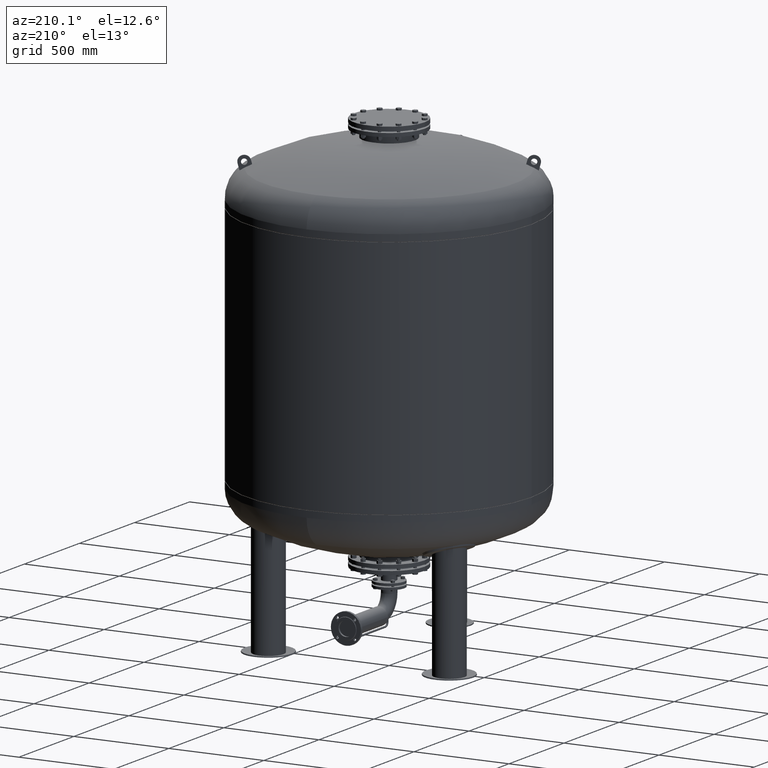
[diagram: clean part render]
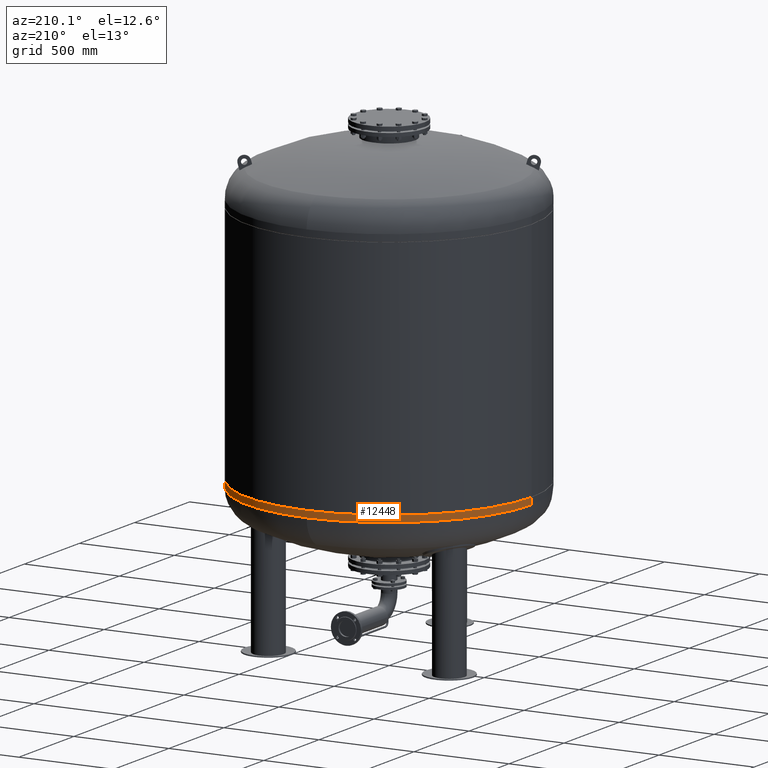
[diagram: same view with one face highlighted and labeled with its STEP entity id]
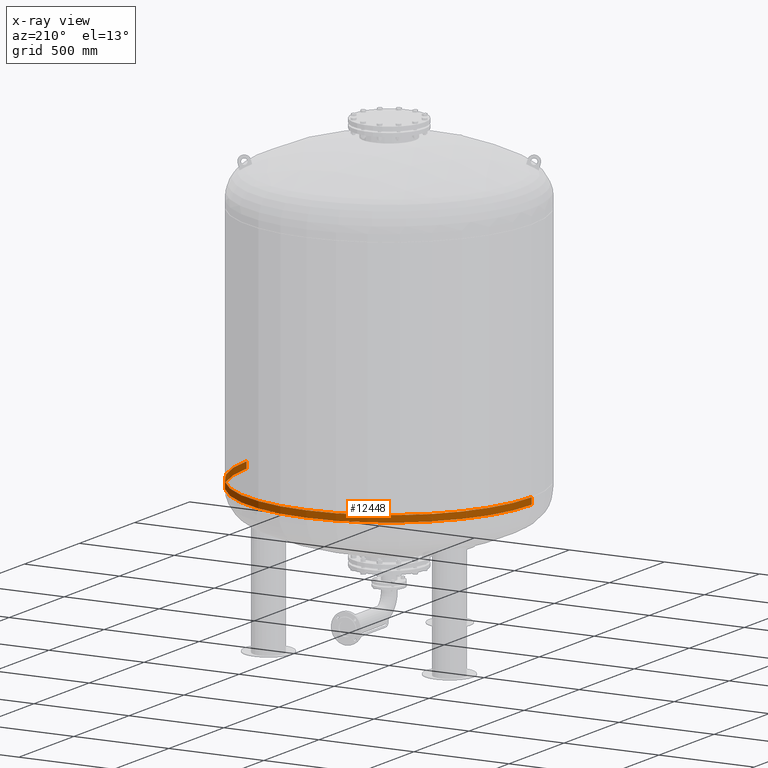
[diagram: x-ray of the same camera — body ghosted, the highlighted face saturated]
A machine part, auxiliary view. The second image highlights one B-rep face of the part: STEP entity #12448.
The next image is the same camera in x-ray: the body ghosted, the highlighted face saturated — about 5% of this face is hidden behind the body in this view.
In plain terms, the highlighted cylindrical surface (partial cylindrical patch) has radius 750 mm, axis along (-0, -0, 1).
Its self-contained STEP definition (entity closure, byte-faithful):
#12398=CARTESIAN_POINT('',(-5.374415E-014,-5.742715E-014,801.618833707949080));
#12399=DIRECTION('',(-1.719159E-016,-1.836970E-016,1.0));
#12400=DIRECTION('',(-1.0,0.0,0.0));
#12401=AXIS2_PLACEMENT_3D('',#12398,#12399,#12400);
#12402=CYLINDRICAL_SURFACE('',#12401,750.0);
#12403=CARTESIAN_POINT('',(-750.0,-6.062002E-014,818.999999999999890));
#12404=VERTEX_POINT('',#12403);
#12405=CARTESIAN_POINT('',(-750.0,-5.423428E-014,784.237667415897930));
#12406=VERTEX_POINT('',#12405);
#12407=CARTESIAN_POINT('',(-750.0,-6.062002E-014,818.999999999999890));
#12408=DIRECTION('',(0.0,0.0,-1.0));
#12409=VECTOR('',#12408,34.762332584101955);
#12410=LINE('',#12407,#12409);
#12411=EDGE_CURVE('',#12404,#12406,#12410,.T.);
#12412=ORIENTED_EDGE('',*,*,#12411,.F.);
#12413=CARTESIAN_POINT('',(750.0,3.122546E-014,819.000000000000110));
#12414=VERTEX_POINT('',#12413);
#12415=CARTESIAN_POINT('',(-5.673224E-014,-6.062002E-014,819.0));
#12416=DIRECTION('',(0.0,0.0,1.0));
#12417=DIRECTION('',(-1.0,0.0,0.0));
#12418=AXIS2_PLACEMENT_3D('',#12415,#12416,#12417);
#12419=CIRCLE('',#12418,750.0);
#12420=EDGE_CURVE('',#12414,#12404,#12419,.T.);
#12421=ORIENTED_EDGE('',*,*,#12420,.F.);
#12422=CARTESIAN_POINT('',(750.0,3.761120E-014,784.237667415898160));
#12423=VERTEX_POINT('',#12422);
#12424=CARTESIAN_POINT('',(750.0,3.122546E-014,819.000000000000110));
#12425=DIRECTION('',(0.0,0.0,-1.0));
#12426=VECTOR('',#12425,34.762332584101955);
#12427=LINE('',#12424,#12426);
#12428=EDGE_CURVE('',#12414,#12423,#12427,.T.);
#12429=ORIENTED_EDGE('',*,*,#12428,.T.);
#12430=CARTESIAN_POINT('',(-1.628998E-013,750.0,784.237667415898270));
#12431=VERTEX_POINT('',#12430);
#12432=CARTESIAN_POINT('',(-5.075605E-014,-5.423428E-014,784.237667415898160));
#12433=DIRECTION('',(0.0,0.0,1.0));
#12434=DIRECTION('',(-1.0,0.0,0.0));
#12435=AXIS2_PLACEMENT_3D('',#12432,#12433,#12434);
#12436=CIRCLE('',#12435,750.0);
#12437=EDGE_CURVE('',#12423,#12431,#12436,.T.);
#12438=ORIENTED_EDGE('',*,*,#12437,.T.);
#12439=CARTESIAN_POINT('',(-5.075605E-014,-5.423428E-014,784.237667415898160));
#12440=DIRECTION('',(0.0,0.0,1.0));
#12441=DIRECTION('',(-1.0,0.0,0.0));
#12442=AXIS2_PLACEMENT_3D('',#12439,#12440,#12441);
#12443=CIRCLE('',#12442,750.0);
#12444=EDGE_CURVE('',#12431,#12406,#12443,.T.);
#12445=ORIENTED_EDGE('',*,*,#12444,.T.);
#12446=EDGE_LOOP('',(#12412,#12421,#12429,#12438,#12445));
#12447=FACE_OUTER_BOUND('',#12446,.T.);
#12448=ADVANCED_FACE('',(#12447),#12402,.T.);